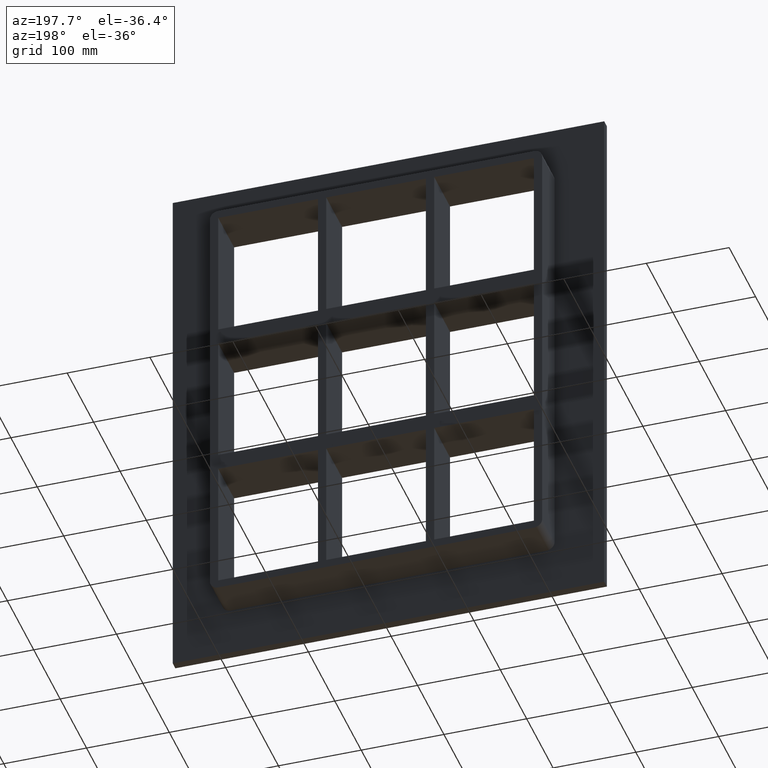
[diagram: clean part render]
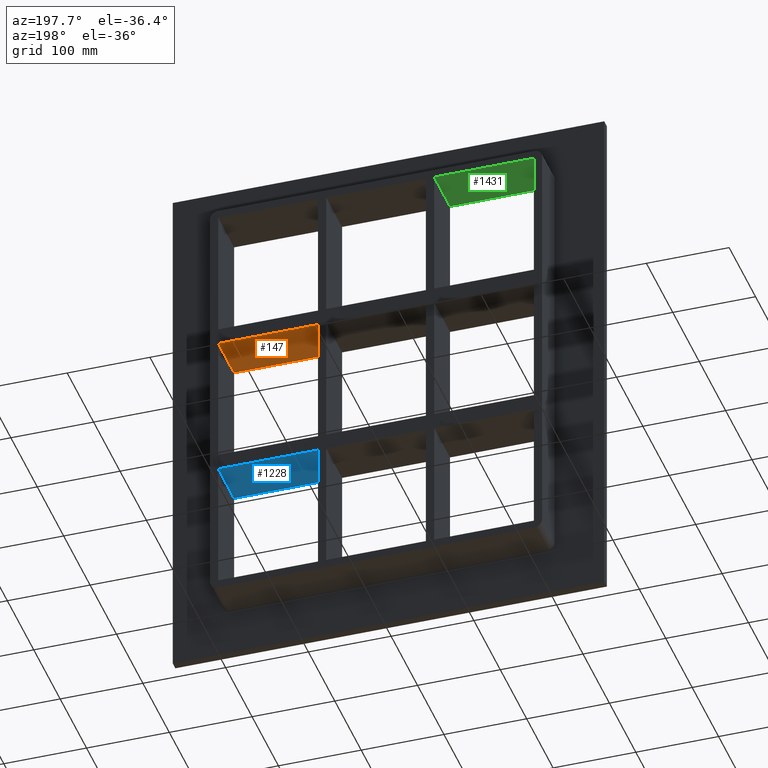
[diagram: same view with three faces highlighted in distinct colors, each labeled with its STEP entity id]
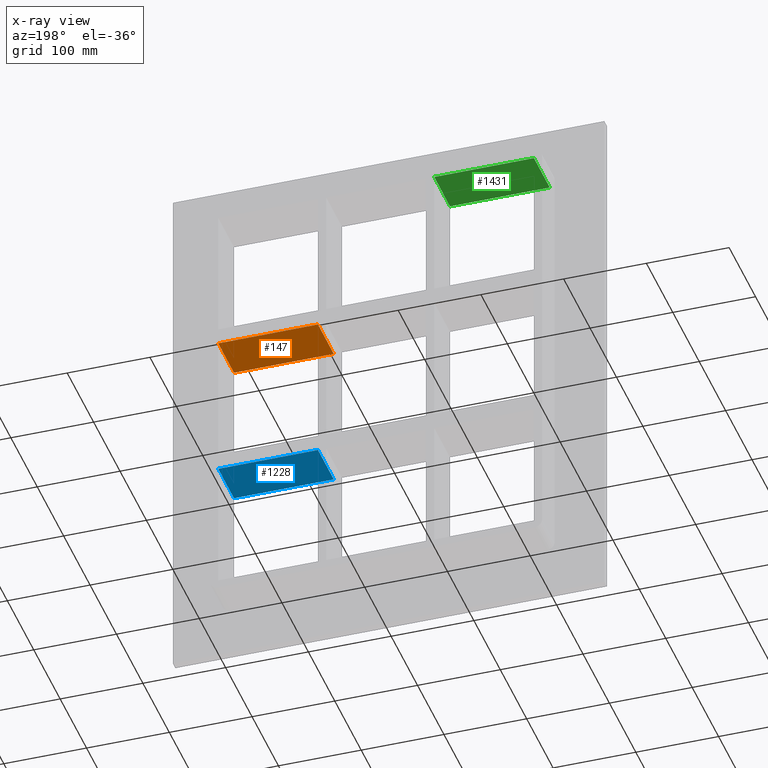
[diagram: x-ray of the same camera — body ghosted, the three highlighted faces saturated]
A machine part, auxiliary view with three faces highlighted in distinct colors.
The next image is the same camera in x-ray (body ghosted, the three faces saturated) — at least one of them is partly hidden behind the body in this view.
Their STEP definitions:

[orange] entity #147 — the highlighted planar face has unit normal (0, 0, -1).
#108=CARTESIAN_POINT('',(190.74999999999818,-3.0,79.749999999990635));
#109=DIRECTION('',(0.0,0.0,-1.0));
#110=DIRECTION('',(-1.0,0.0,0.0));
#111=AXIS2_PLACEMENT_3D('',#108,#109,#110);
#112=PLANE('',#111);
#113=CARTESIAN_POINT('',(70.250000000003638,57.0,79.749999999990663));
#114=VERTEX_POINT('',#113);
#115=CARTESIAN_POINT('',(70.250000000003638,-3.0,79.749999999990663));
#116=VERTEX_POINT('',#115);
#117=CARTESIAN_POINT('',(70.250000000003638,57.0,79.749999999990663));
#118=DIRECTION('',(0.0,-1.0,0.0));
#119=VECTOR('',#118,60.0);
#120=LINE('',#117,#119);
#121=EDGE_CURVE('',#114,#116,#120,.T.);
#122=ORIENTED_EDGE('',*,*,#121,.F.);
#123=CARTESIAN_POINT('',(190.74999999999821,57.0,79.749999999990635));
#124=VERTEX_POINT('',#123);
#125=CARTESIAN_POINT('',(190.74999999999818,57.0,79.749999999990635));
#126=DIRECTION('',(-1.0,0.0,0.0));
#127=VECTOR('',#126,120.49999999999454);
#128=LINE('',#125,#127);
#129=EDGE_CURVE('',#124,#114,#128,.T.);
#130=ORIENTED_EDGE('',*,*,#129,.F.);
#131=CARTESIAN_POINT('',(190.74999999999818,-3.0,79.749999999990635));
#132=VERTEX_POINT('',#131);
#133=CARTESIAN_POINT('',(190.75000000000003,-3.0,79.749999999990649));
#134=DIRECTION('',(0.0,1.0,0.0));
#135=VECTOR('',#134,60.000000000000007);
#136=LINE('',#133,#135);
#137=EDGE_CURVE('',#132,#124,#136,.T.);
#138=ORIENTED_EDGE('',*,*,#137,.F.);
#139=CARTESIAN_POINT('',(190.74999999999818,-3.0,79.749999999990635));
#140=DIRECTION('',(-1.0,0.0,0.0));
#141=VECTOR('',#140,120.49999999999454);
#142=LINE('',#139,#141);
#143=EDGE_CURVE('',#132,#116,#142,.T.);
#144=ORIENTED_EDGE('',*,*,#143,.T.);
#145=EDGE_LOOP('',(#122,#130,#138,#144));
#146=FACE_OUTER_BOUND('',#145,.T.);
#147=ADVANCED_FACE('',(#146),#112,.T.);

[blue] entity #1228 — the highlighted planar face has unit normal (0, 0, -1).
#803=CARTESIAN_POINT('',(190.74999999999821,57.0,-99.750000000009393));
#804=VERTEX_POINT('',#803);
#811=CARTESIAN_POINT('',(70.250000000003638,57.0,-99.750000000009393));
#812=VERTEX_POINT('',#811);
#813=CARTESIAN_POINT('',(190.74999999999818,57.0,-99.750000000009393));
#814=DIRECTION('',(-1.0,0.0,0.0));
#815=VECTOR('',#814,120.49999999999454);
#816=LINE('',#813,#815);
#817=EDGE_CURVE('',#804,#812,#816,.T.);
#912=CARTESIAN_POINT('',(70.250000000003638,-3.0,-99.750000000009393));
#913=VERTEX_POINT('',#912);
#914=CARTESIAN_POINT('',(70.250000000003638,-3.0,-99.750000000009351));
#915=DIRECTION('',(0.0,1.0,0.0));
#916=VECTOR('',#915,60.0);
#917=LINE('',#914,#916);
#918=EDGE_CURVE('',#913,#812,#917,.T.);
#1160=CARTESIAN_POINT('',(190.74999999999818,-3.0,-99.750000000009393));
#1161=VERTEX_POINT('',#1160);
#1162=CARTESIAN_POINT('',(190.74999999999818,-3.0,-99.750000000009393));
#1163=DIRECTION('',(-1.0,0.0,0.0));
#1164=VECTOR('',#1163,120.49999999999454);
#1165=LINE('',#1162,#1164);
#1166=EDGE_CURVE('',#1161,#913,#1165,.T.);
#1212=CARTESIAN_POINT('',(190.74999999999818,-3.0,-99.750000000009393));
#1213=DIRECTION('',(0.0,0.0,-1.0));
#1214=DIRECTION('',(-1.0,0.0,0.0));
#1215=AXIS2_PLACEMENT_3D('',#1212,#1213,#1214);
#1216=PLANE('',#1215);
#1217=ORIENTED_EDGE('',*,*,#918,.T.);
#1218=ORIENTED_EDGE('',*,*,#817,.F.);
#1219=CARTESIAN_POINT('',(190.75000000000003,-3.0,-99.750000000009408));
#1220=DIRECTION('',(0.0,1.0,0.0));
#1221=VECTOR('',#1220,60.000000000000007);
#1222=LINE('',#1219,#1221);
#1223=EDGE_CURVE('',#1161,#804,#1222,.T.);
#1224=ORIENTED_EDGE('',*,*,#1223,.F.);
#1225=ORIENTED_EDGE('',*,*,#1166,.T.);
#1226=EDGE_LOOP('',(#1217,#1218,#1224,#1225));
#1227=FACE_OUTER_BOUND('',#1226,.T.);
#1228=ADVANCED_FACE('',(#1227),#1216,.T.);

[green] entity #1431 — the highlighted planar face has unit normal (0, 0, 1).
#314=CARTESIAN_POINT('',(-190.75000000000003,57.0,259.25000000000006));
#315=VERTEX_POINT('',#314);
#322=CARTESIAN_POINT('',(-190.75000000000003,-3.0,259.25000000000006));
#323=VERTEX_POINT('',#322);
#324=CARTESIAN_POINT('',(-190.75000000000003,-3.0,259.25));
#325=DIRECTION('',(0.0,1.0,0.0));
#326=VECTOR('',#325,60.0);
#327=LINE('',#324,#326);
#328=EDGE_CURVE('',#323,#315,#327,.T.);
#469=CARTESIAN_POINT('',(-70.250000000001393,-3.0,259.25000000000006));
#470=VERTEX_POINT('',#469);
#477=CARTESIAN_POINT('',(-70.250000000001393,57.0,259.25000000000006));
#478=VERTEX_POINT('',#477);
#479=CARTESIAN_POINT('',(-70.250000000001393,57.000000000000007,259.25));
#480=DIRECTION('',(0.0,-1.0,0.0));
#481=VECTOR('',#480,60.000000000000007);
#482=LINE('',#479,#481);
#483=EDGE_CURVE('',#478,#470,#482,.T.);
#784=CARTESIAN_POINT('',(-70.250000000001393,57.0,259.25));
#785=DIRECTION('',(-1.0,0.0,0.0));
#786=VECTOR('',#785,120.49999999999864);
#787=LINE('',#784,#786);
#788=EDGE_CURVE('',#478,#315,#787,.T.);
#1062=CARTESIAN_POINT('',(-190.75000000000003,-3.0,259.25));
#1063=DIRECTION('',(1.0,0.0,0.0));
#1064=VECTOR('',#1063,120.49999999999864);
#1065=LINE('',#1062,#1064);
#1066=EDGE_CURVE('',#323,#470,#1065,.T.);
#1420=CARTESIAN_POINT('',(-190.75000000000003,0.0,259.25));
#1421=DIRECTION('',(0.0,0.0,1.0));
#1422=DIRECTION('',(1.0,0.0,0.0));
#1423=AXIS2_PLACEMENT_3D('',#1420,#1421,#1422);
#1424=PLANE('',#1423);
#1425=ORIENTED_EDGE('',*,*,#483,.T.);
#1426=ORIENTED_EDGE('',*,*,#1066,.F.);
#1427=ORIENTED_EDGE('',*,*,#328,.T.);
#1428=ORIENTED_EDGE('',*,*,#788,.F.);
#1429=EDGE_LOOP('',(#1425,#1426,#1427,#1428));
#1430=FACE_OUTER_BOUND('',#1429,.T.);
#1431=ADVANCED_FACE('',(#1430),#1424,.F.);